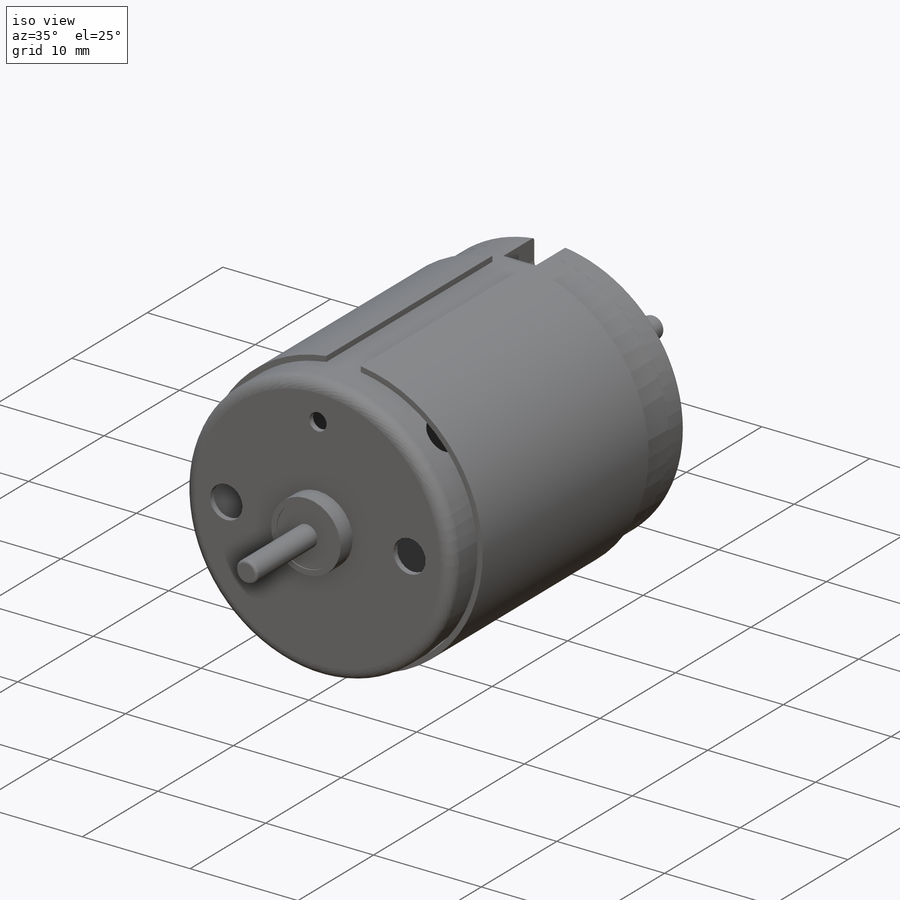
[diagram: iso view]
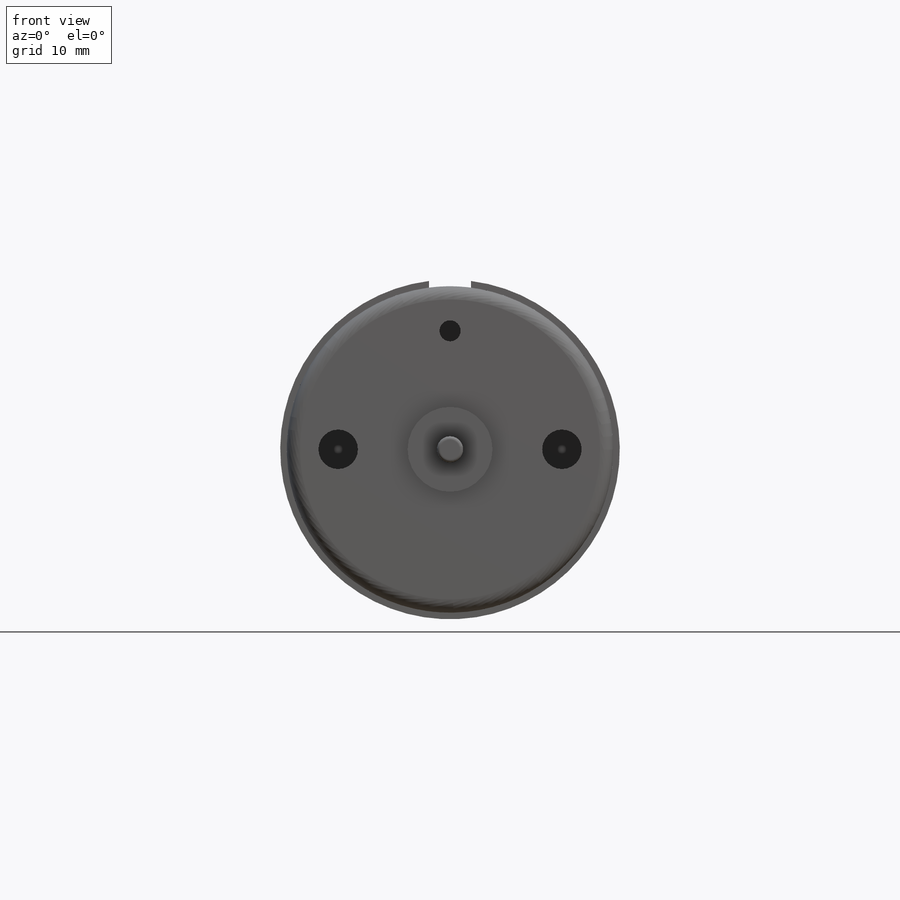
[diagram: front view]
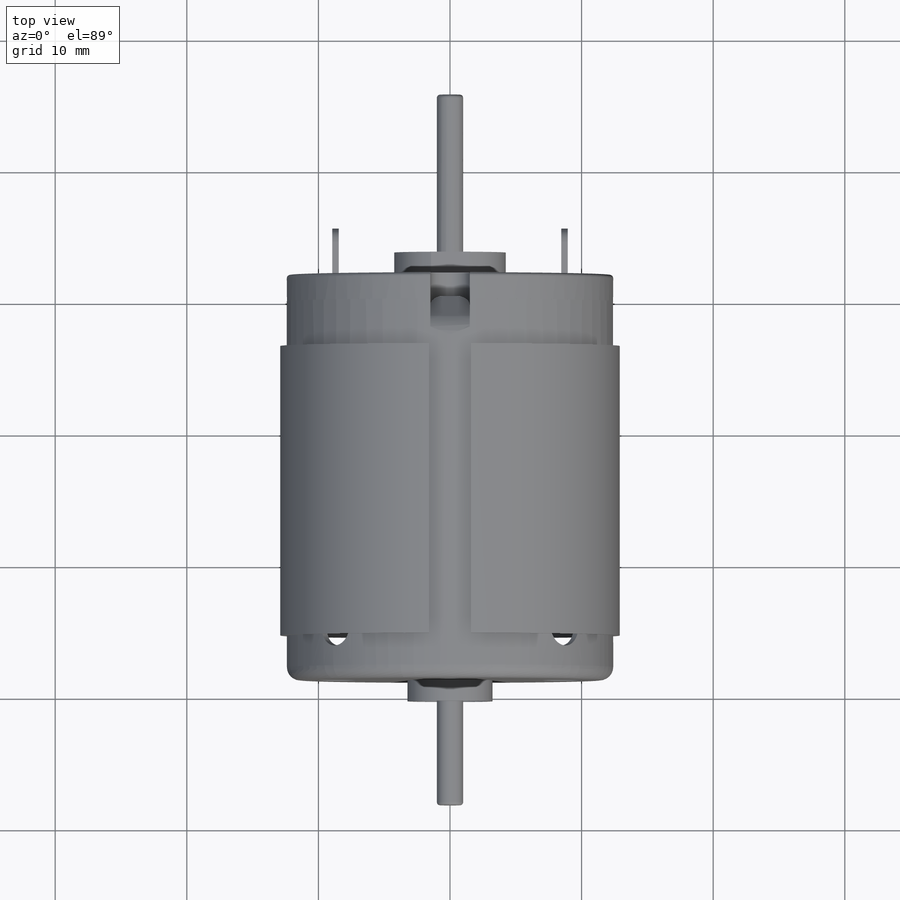
[diagram: top view]
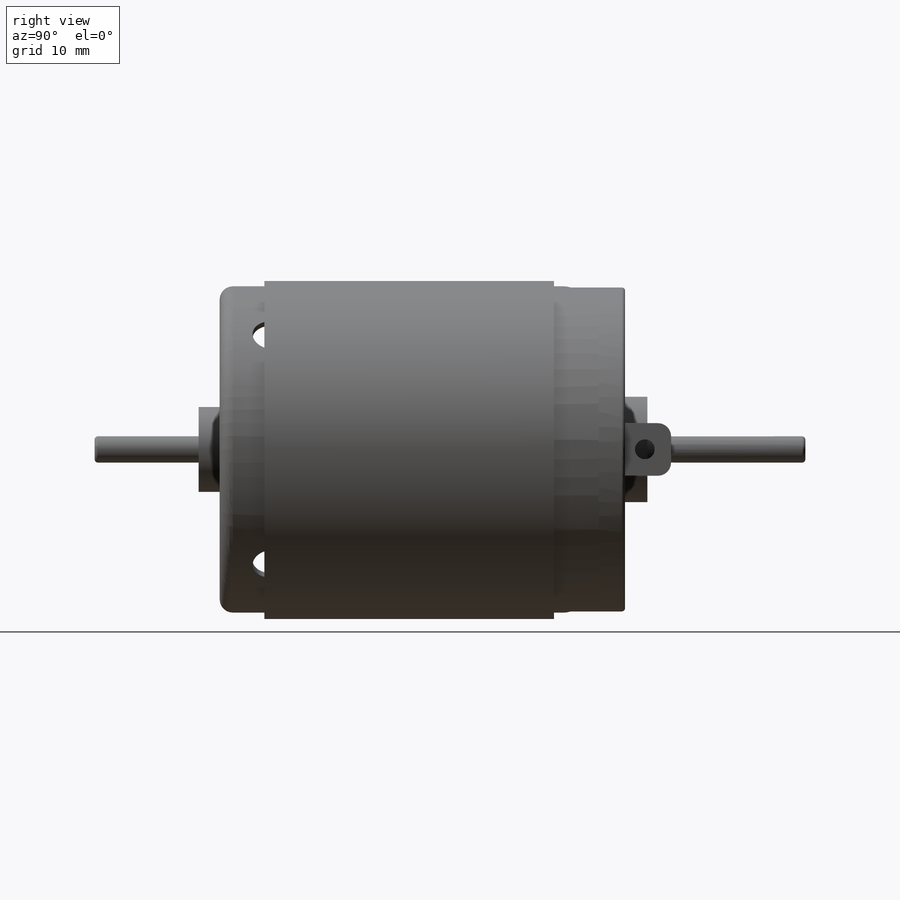
[diagram: right view]
SOLIDWORKS PART (.sldprt)
format: sldprt  version: not decoded by parser v0  size: 871,936 bytes
history: native  units: mm
features: sketch x20, extrude x12, cut_extrude x8, plane x6, fillet x6, mirror x3, material x1, sheet_metal_op x1, pattern_circular x1 (+16 scaffold rows collapsed; 7 parser-record rows omitted)
feature tree (81):
  scaffold x16  (default folders/planes/origin — collapsed)
  material  "Material <not specified>"
  plane  "Ön Düzlem"
  plane  "Üst Düzlem"
  plane  "Sağ Düzlem"
  sketch  "Sketch1"  dims[D1=24.8mm]
  extrude  "Base"  Depth=28.8mm
  parser-record x7  (decoder bookkeeping rows leaked as tree rows — omitted from the tree; the rows remain in map.json)
  sketch  "Sketch2"
  extrude  "Boss-Extrude2"  Depth=2mm
  sketch  "Sketch3"  dims[D1=8.5mm D4=2.0mm D2=8.0mm D3=4.0mm]
  extrude  "Boss-Extrude3"  Depth=1.7mm
  sketch  "Sketch4"  dims[c1.D1=16.0mm c1.D2=18.0mm c1.D4=10.0mm c1.D7=0.5mm c1.D8=1.5mm c1.D9=2.0mm c2.D2=10.0mm c2.D3=10.0mm c2.D5=2.0mm c2.D6=2.0mm c2.D9=0.75mm]
  cut_extrude  "Cut-Extrude1"  Depth=0.5mm
  sketch  "Sketch5"  dims[c1.D1=4.0mm c1.D2=4.0mm c2.D1=~2.172088mm c2.D2=2.0mm]
  cut_extrude  "Cut-Extrude2"  Depth=5.4mm
  sketch  "Sketch6"  dims[D1=3.0mm]
  extrude  "Boss-Extrude4"  Depth=5.4mm
  sketch  "Sketch7"  dims[D1=0.75mm]
  extrude  "Boss-Extrude5"  Depth=1mm
  mirror  "Mirror1"
  sheet_metal_op  "Flanges"
  sketch  "Sketch11"  dims[c1.D4=2.0mm c1.D5=2.0mm c1.D1=4.0mm c1.D2=0.75mm c2.D1=1.5mm c2.D3=3.0mm]
  extrude  "Boss-Extrude15"  Depth=3mm
  sketch  "Sketch14"
  cut_extrude  "Cut-Extrude3"  [1 undecoded]
  fillet  "Fillet2"  Radius=1mm
  mirror  "Mirror2"
  sketch  "Sketch15"  dims[D1=0.5mm D2=4.0mm D3=2.0mm D4=16.9mm D5=8.45mm]
  extrude  "Boss-Extrude16"  Depth=4mm
  sketch  "Sketch16"  dims[c1.D1=1.5mm c1.D2=2.0mm c1.D3=2.0mm c2.D2=2.0mm c2.D3=2.0mm]
  cut_extrude  "Cut-Extrude4"  [1 undecoded]
  fillet  "Fillet3"  Radius=1mm
  mirror  "Mirror3"
  sketch  "Sketch17"
  extrude  "Encoder Shaft"  Depth=13.7mm
  fillet  "Fillet4"  Radius=1mm
  sketch  "Sketch18"  dims[D1=6.45mm D2=0.5mm]
  extrude  "Boss-Extrude18"  Depth=1.6mm
  sketch  "Sketch19"  dims[D1=2.0mm]
  extrude  "Boss-Extrude19"  Depth=1.5mm
  sketch  "Sketch20"  dims[c1.D1=~1.340992mm c1.D2=1.6mm c1.D3=~2.987989mm c1.D4=~2.987989mm c1.D5=3.0mm c1.D6=3.0mm c2.D1=9.0mm c2.D3=17.0mm c2.D4=8.5mm]
  cut_extrude  "Cut-Extrude5"  Depth=0.5mm
  plane  "Plane2"  Offset=0.5mm
  sketch  "Sketch21"  dims[D1=0.5mm]
  cut_extrude  "Cut-Extrude6"  Depth=23.5mm
  sketch  "Sketch22"
  extrude  "Front Shaft"  Depth=9.5mm
  plane  "Plane3"  Offset=3.4mm
  sketch  "Sketch24"  dims[D1=0.5mm]
  extrude  "Boss-Extrude21"  Depth=22mm
  sketch  "Sketch25"  dims[D1=1.6mm D2=1.6mm]
  cut_extrude  "Cut-Extrude8"  [1 undecoded]
  plane  "Plane4"
  sketch  "Sketch26"  dims[D2=3.0mm D1=4.0mm]
  cut_extrude  "Cut-Extrude11"  Depth=22mm
  pattern_circular  "CirPattern1"  Count=2 Angle=90deg
  fillet  "Fillet5"  Radius=0.25mm
  fillet  "Fillet6"  Radius=0.25mm
  fillet  "Fillet7"  Radius=0.25mm
decode coverage: 40 of 51 modeling features carry decoded parameters
note: ~ marks probable driven/reference dimensions
note: 3 parameter values undecoded
summary: no parameter record found for 3 features
note: suppression state not decoded; provenance and decode notes live in map.json
